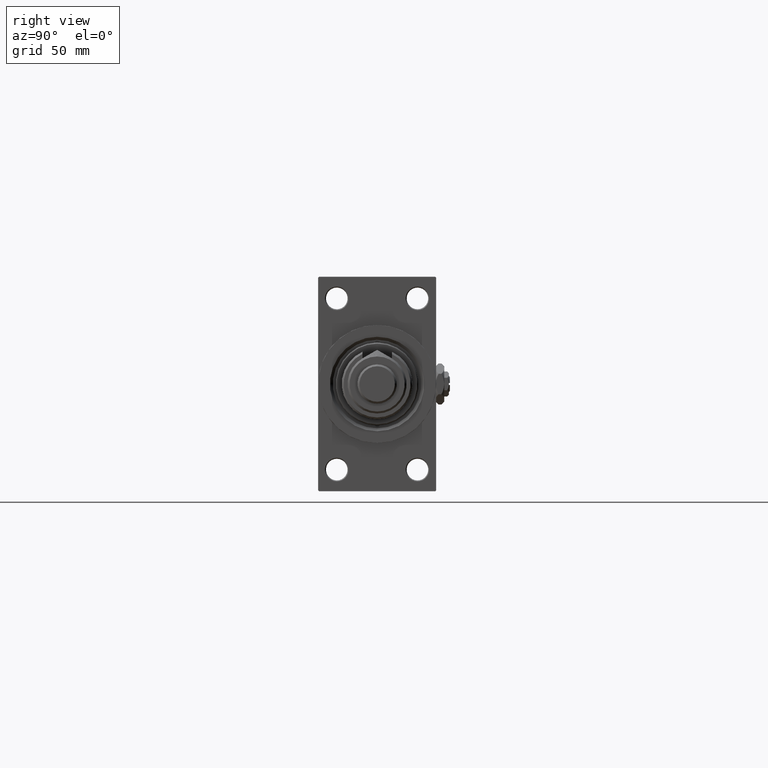
[diagram: clean part render]
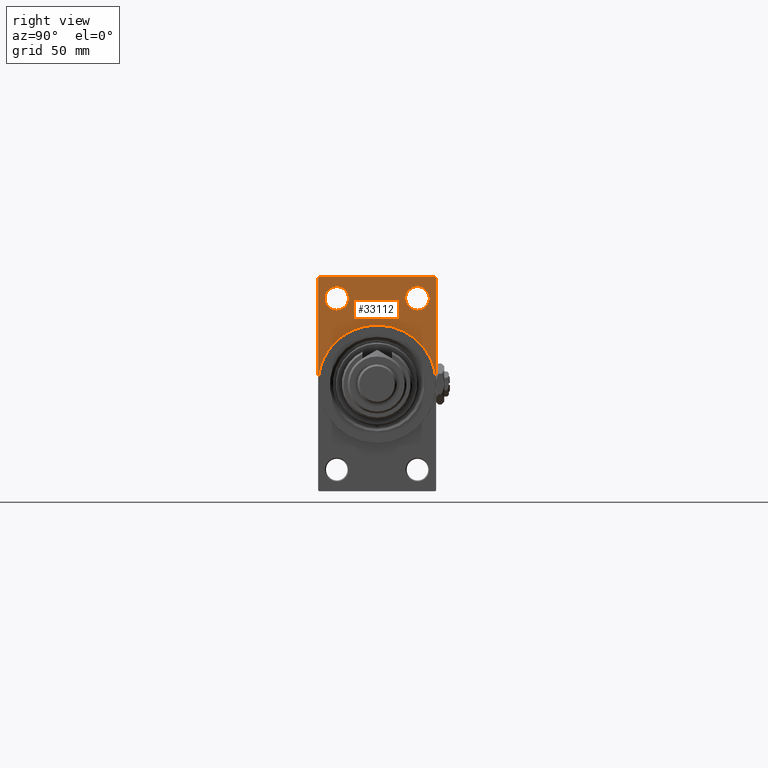
[diagram: same view with one face highlighted and labeled with its STEP entity id]
A machine part, right view. The second image highlights one B-rep face of the part: STEP entity #33112.
In plain terms, the highlighted planar face has unit normal (-1, 0, 0).
Its self-contained STEP definition (entity closure, byte-faithful):
#405 = VERTEX_POINT ( 'NONE', #13151 ) ;
#636 = ORIENTED_EDGE ( 'NONE', *, *, #30106, .F. ) ;
#758 = CARTESIAN_POINT ( 'NONE',  ( 218.0000000000000284, -30.00000000000000000, 0.000000000000000000 ) ) ;
#1602 = EDGE_CURVE ( 'NONE', #11655, #34643, #50559, .T. ) ;
#1904 = CARTESIAN_POINT ( 'NONE',  ( 218.0000000000000284, -20.50000000000000000, 43.50000000000000000 ) ) ;
#2433 = DIRECTION ( 'NONE',  ( -1.000000000000000000, 0.000000000000000000, -0.000000000000000000 ) ) ;
#3425 = EDGE_CURVE ( 'NONE', #49988, #32699, #37823, .T. ) ;
#5276 = VERTEX_POINT ( 'NONE', #39564 ) ;
#5381 = DIRECTION ( 'NONE',  ( 0.000000000000000000, -0.7071067811865474617, 0.7071067811865474617 ) ) ;
#5591 = VECTOR ( 'NONE', #23992, 1000.000000000000000 ) ;
#5610 = DIRECTION ( 'NONE',  ( 1.000000000000000000, 0.000000000000000000, 0.000000000000000000 ) ) ;
#6213 = VECTOR ( 'NONE', #6837, 1000.000000000000000 ) ;
#6404 = DIRECTION ( 'NONE',  ( -1.000000000000000000, 0.000000000000000000, -0.000000000000000000 ) ) ;
#6451 = AXIS2_PLACEMENT_3D ( 'NONE', #9609, #6404, #41917 ) ;
#6837 = DIRECTION ( 'NONE',  ( -0.000000000000000000, -0.7071067811865450192, -0.7071067811865500152 ) ) ;
#6863 = CARTESIAN_POINT ( 'NONE',  ( 218.0000000000000284, 0.000000000000000000, 30.00000000000000000 ) ) ;
#7777 = VECTOR ( 'NONE', #38895, 1000.000000000000000 ) ;
#7881 = VERTEX_POINT ( 'NONE', #6863 ) ;
#9233 = EDGE_CURVE ( 'NONE', #405, #43847, #47639, .T. ) ;
#9360 = CARTESIAN_POINT ( 'NONE',  ( 218.0000000000000284, 29.49999999999996803, 54.49999999999999289 ) ) ;
#9577 = CARTESIAN_POINT ( 'NONE',  ( 218.0000000000000284, 29.49999999999996803, 54.49999999999999289 ) ) ;
#9609 = CARTESIAN_POINT ( 'NONE',  ( 218.0000000000000284, 0.000000000000000000, 0.000000000000000000 ) ) ;
#11201 = DIRECTION ( 'NONE',  ( 0.000000000000000000, 0.000000000000000000, 1.000000000000000000 ) ) ;
#11339 = DIRECTION ( 'NONE',  ( 0.000000000000000000, 0.000000000000000000, 1.000000000000000000 ) ) ;
#11519 = CIRCLE ( 'NONE', #47042, 30.00000000000000000 ) ;
#11655 = VERTEX_POINT ( 'NONE', #29491 ) ;
#12640 = CIRCLE ( 'NONE', #25351, 6.000000000000116351 ) ;
#12721 = DIRECTION ( 'NONE',  ( -1.000000000000000000, 0.000000000000000000, -0.000000000000000000 ) ) ;
#12816 = CARTESIAN_POINT ( 'NONE',  ( 218.0000000000000284, 20.50000000000000000, 49.50000000000011369 ) ) ;
#13151 = CARTESIAN_POINT ( 'NONE',  ( 218.0000000000000284, 29.99999999999999645, 53.99999999999996447 ) ) ;
#13284 = AXIS2_PLACEMENT_3D ( 'NONE', #35318, #43787, #11201 ) ;
#13713 = DIRECTION ( 'NONE',  ( 0.000000000000000000, -1.000000000000000000, 1.156482317317871478E-16 ) ) ;
#13855 = FACE_OUTER_BOUND ( 'NONE', #30216, .T. ) ;
#14660 = VECTOR ( 'NONE', #5381, 1000.000000000000114 ) ;
#14789 = ORIENTED_EDGE ( 'NONE', *, *, #25224, .T. ) ;
#14915 = CIRCLE ( 'NONE', #41982, 6.000000000000116351 ) ;
#15525 = LINE ( 'NONE', #19774, #5591 ) ;
#15776 = EDGE_CURVE ( 'NONE', #405, #49988, #45679, .T. ) ;
#16062 = ORIENTED_EDGE ( 'NONE', *, *, #1602, .T. ) ;
#16175 = DIRECTION ( 'NONE',  ( 0.000000000000000000, 0.000000000000000000, 1.000000000000000000 ) ) ;
#17019 = EDGE_CURVE ( 'NONE', #32699, #33065, #31751, .T. ) ;
#17613 = CIRCLE ( 'NONE', #23552, 6.000000000000116351 ) ;
#17654 = AXIS2_PLACEMENT_3D ( 'NONE', #34471, #26529, #42409 ) ;
#19774 = CARTESIAN_POINT ( 'NONE',  ( 218.0000000000000284, -30.00000000000000000, 54.50000000000000000 ) ) ;
#20230 = CIRCLE ( 'NONE', #17654, 30.00000000000000000 ) ;
#21153 = ORIENTED_EDGE ( 'NONE', *, *, #9233, .F. ) ;
#21169 = EDGE_CURVE ( 'NONE', #43847, #7881, #11519, .T. ) ;
#23552 = AXIS2_PLACEMENT_3D ( 'NONE', #1904, #2433, #46971 ) ;
#23992 = DIRECTION ( 'NONE',  ( 0.000000000000000000, 0.000000000000000000, -1.000000000000000000 ) ) ;
#24864 = EDGE_CURVE ( 'NONE', #33065, #37263, #15525, .T. ) ;
#24982 = CARTESIAN_POINT ( 'NONE',  ( 218.0000000000000284, 0.000000000000000000, 0.000000000000000000 ) ) ;
#25224 = EDGE_CURVE ( 'NONE', #46040, #5276, #14915, .T. ) ;
#25351 = AXIS2_PLACEMENT_3D ( 'NONE', #34673, #38906, #11339 ) ;
#26529 = DIRECTION ( 'NONE',  ( 1.000000000000000000, 0.000000000000000000, 0.000000000000000000 ) ) ;
#26567 = FACE_BOUND ( 'NONE', #29043, .T. ) ;
#26906 = VECTOR ( 'NONE', #13713, 1000.000000000000000 ) ;
#28979 = EDGE_CURVE ( 'NONE', #34643, #11655, #17613, .T. ) ;
#29043 = EDGE_LOOP ( 'NONE', ( #16062, #50527 ) ) ;
#29491 = CARTESIAN_POINT ( 'NONE',  ( 218.0000000000000284, -20.50000000000000000, 37.49999999999987921 ) ) ;
#29739 = DIRECTION ( 'NONE',  ( 0.000000000000000000, 0.000000000000000000, -1.000000000000000000 ) ) ;
#29873 = CARTESIAN_POINT ( 'NONE',  ( 218.0000000000000284, 29.99999999999999645, 54.49999999999999289 ) ) ;
#29901 = ORIENTED_EDGE ( 'NONE', *, *, #17019, .T. ) ;
#30106 = EDGE_CURVE ( 'NONE', #7881, #37263, #20230, .T. ) ;
#30216 = EDGE_LOOP ( 'NONE', ( #42513, #29901, #36101, #636, #30647, #21153, #39126 ) ) ;
#30647 = ORIENTED_EDGE ( 'NONE', *, *, #21169, .F. ) ;
#31751 = LINE ( 'NONE', #43145, #6213 ) ;
#32576 = CARTESIAN_POINT ( 'NONE',  ( 218.0000000000000284, 20.50000000000000000, 43.50000000000000000 ) ) ;
#32699 = VERTEX_POINT ( 'NONE', #38823 ) ;
#33065 = VERTEX_POINT ( 'NONE', #33724 ) ;
#33112 = ADVANCED_FACE ( 'NONE', ( #26567, #37694, #13855 ), #42710, .F. ) ;
#33580 = EDGE_LOOP ( 'NONE', ( #47875, #14789 ) ) ;
#33724 = CARTESIAN_POINT ( 'NONE',  ( 218.0000000000000284, -30.00000000000000000, 54.00000000000002842 ) ) ;
#34471 = CARTESIAN_POINT ( 'NONE',  ( 218.0000000000000284, 0.000000000000000000, 0.000000000000000000 ) ) ;
#34643 = VERTEX_POINT ( 'NONE', #36489 ) ;
#34673 = CARTESIAN_POINT ( 'NONE',  ( 218.0000000000000284, 20.50000000000000000, 43.50000000000000000 ) ) ;
#35318 = CARTESIAN_POINT ( 'NONE',  ( 218.0000000000000284, -20.50000000000000000, 43.50000000000000000 ) ) ;
#36101 = ORIENTED_EDGE ( 'NONE', *, *, #24864, .T. ) ;
#36489 = CARTESIAN_POINT ( 'NONE',  ( 218.0000000000000284, -20.50000000000000000, 49.50000000000011369 ) ) ;
#37263 = VERTEX_POINT ( 'NONE', #758 ) ;
#37694 = FACE_BOUND ( 'NONE', #33580, .T. ) ;
#37823 = LINE ( 'NONE', #29873, #26906 ) ;
#37876 = CARTESIAN_POINT ( 'NONE',  ( 218.0000000000000284, 30.00000000000000000, 0.000000000000000000 ) ) ;
#38823 = CARTESIAN_POINT ( 'NONE',  ( 218.0000000000000284, -29.50000000000002842, 54.50000000000000000 ) ) ;
#38895 = DIRECTION ( 'NONE',  ( 0.000000000000000000, 0.000000000000000000, -1.000000000000000000 ) ) ;
#38906 = DIRECTION ( 'NONE',  ( -1.000000000000000000, 0.000000000000000000, -0.000000000000000000 ) ) ;
#39126 = ORIENTED_EDGE ( 'NONE', *, *, #15776, .T. ) ;
#39564 = CARTESIAN_POINT ( 'NONE',  ( 218.0000000000000284, 20.50000000000000000, 37.49999999999987921 ) ) ;
#41882 = EDGE_CURVE ( 'NONE', #5276, #46040, #12640, .T. ) ;
#41917 = DIRECTION ( 'NONE',  ( -0.000000000000000000, 0.000000000000000000, 1.000000000000000000 ) ) ;
#41982 = AXIS2_PLACEMENT_3D ( 'NONE', #32576, #12721, #16175 ) ;
#42409 = DIRECTION ( 'NONE',  ( 0.000000000000000000, 0.000000000000000000, -1.000000000000000000 ) ) ;
#42513 = ORIENTED_EDGE ( 'NONE', *, *, #3425, .T. ) ;
#42710 = PLANE ( 'NONE',  #6451 ) ;
#43145 = CARTESIAN_POINT ( 'NONE',  ( 218.0000000000000284, -30.00000000000000000, 54.00000000000002842 ) ) ;
#43787 = DIRECTION ( 'NONE',  ( -1.000000000000000000, 0.000000000000000000, -0.000000000000000000 ) ) ;
#43847 = VERTEX_POINT ( 'NONE', #37876 ) ;
#45679 = LINE ( 'NONE', #9360, #14660 ) ;
#46040 = VERTEX_POINT ( 'NONE', #12816 ) ;
#46853 = CARTESIAN_POINT ( 'NONE',  ( 218.0000000000000284, 29.99999999999999645, 54.49999999999999289 ) ) ;
#46971 = DIRECTION ( 'NONE',  ( 0.000000000000000000, 0.000000000000000000, 1.000000000000000000 ) ) ;
#47042 = AXIS2_PLACEMENT_3D ( 'NONE', #24982, #5610, #29739 ) ;
#47639 = LINE ( 'NONE', #46853, #7777 ) ;
#47875 = ORIENTED_EDGE ( 'NONE', *, *, #41882, .T. ) ;
#49988 = VERTEX_POINT ( 'NONE', #9577 ) ;
#50527 = ORIENTED_EDGE ( 'NONE', *, *, #28979, .T. ) ;
#50559 = CIRCLE ( 'NONE', #13284, 6.000000000000116351 ) ;